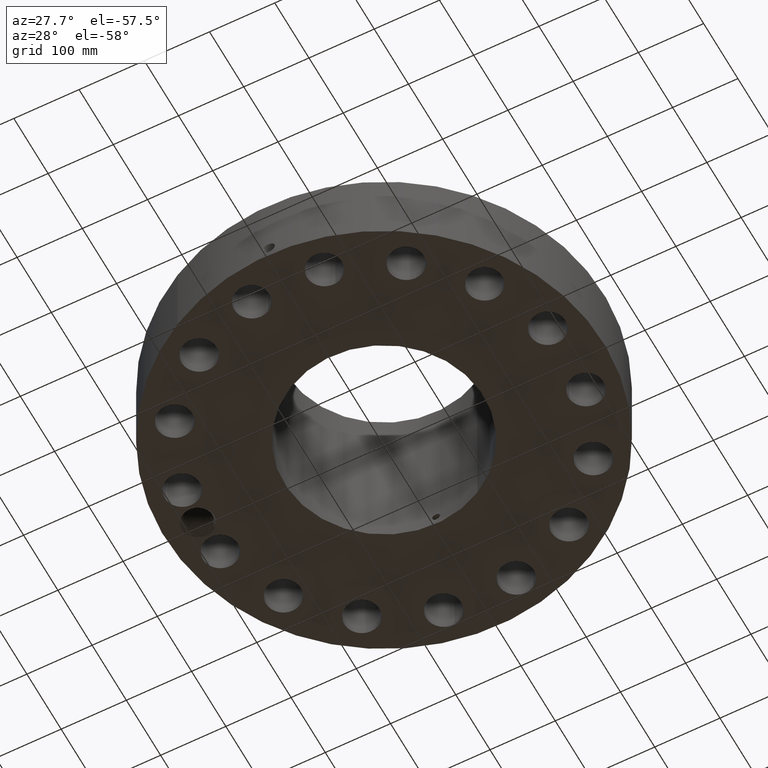
[diagram: clean part render]
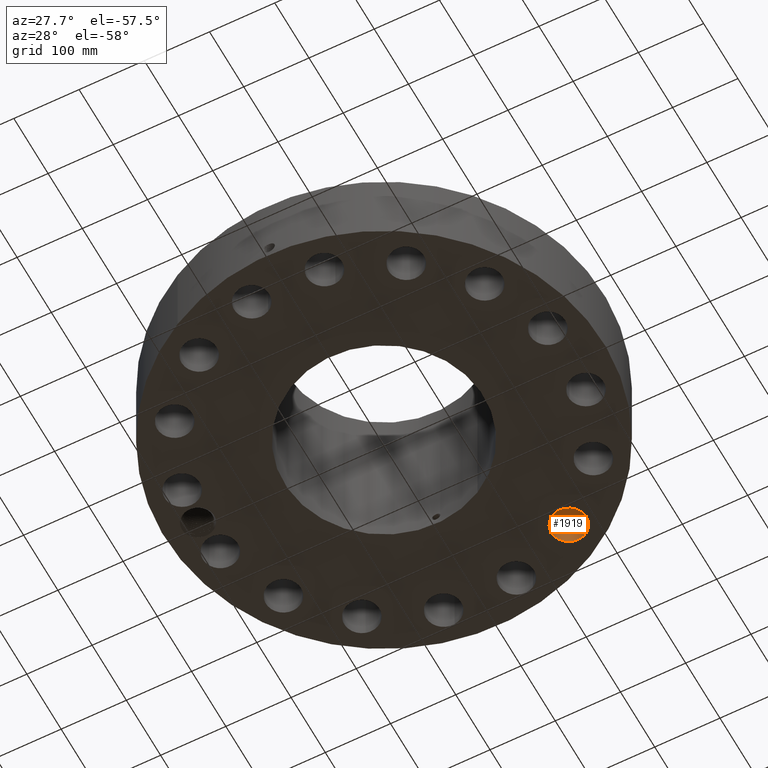
[diagram: same view with one face highlighted and labeled with its STEP entity id]
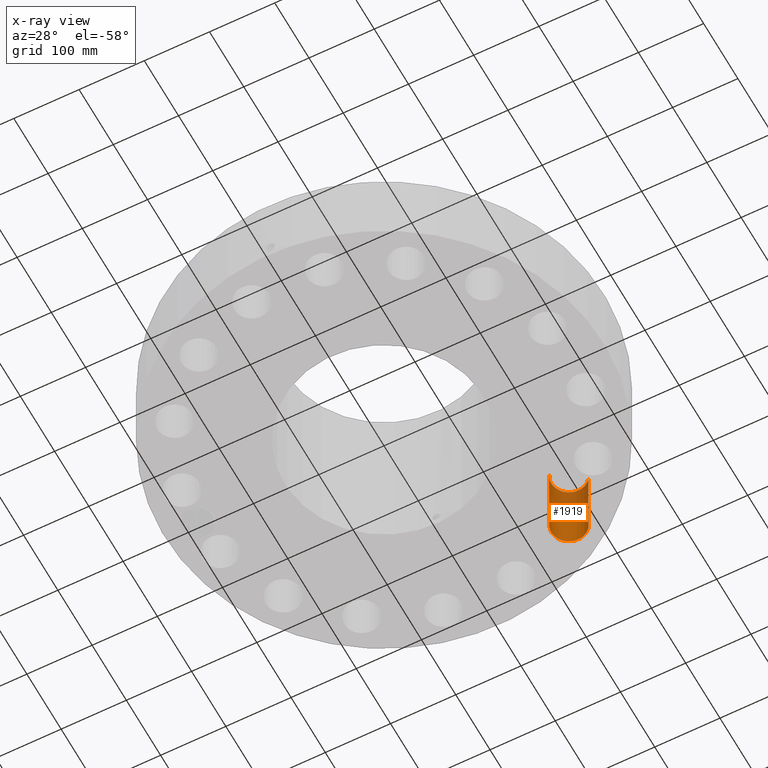
[diagram: x-ray of the same camera — body ghosted, the highlighted face saturated]
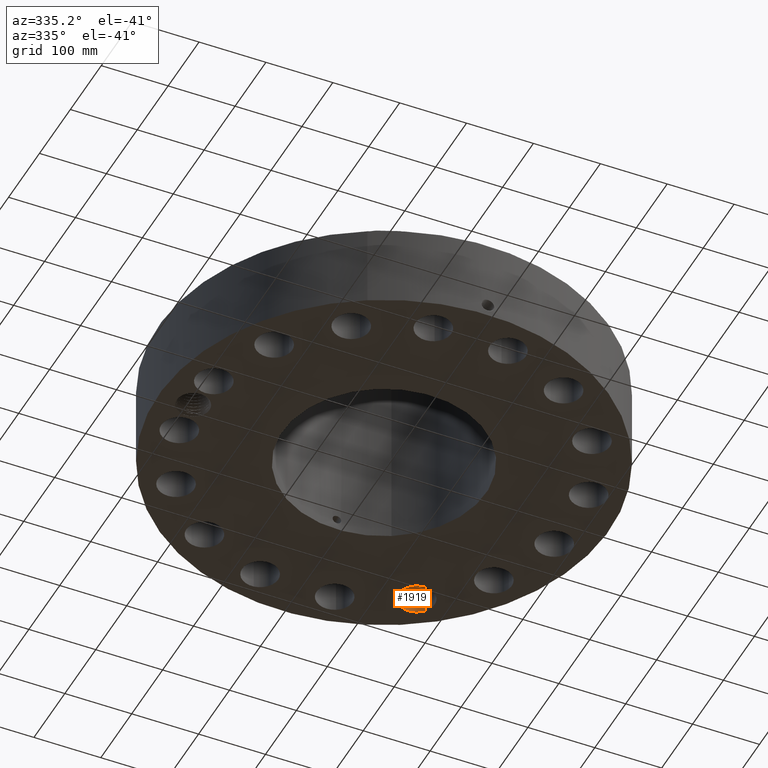
[diagram: same view with one face highlighted and labeled with its STEP entity id]
A machine part, auxiliary view. The second image highlights one B-rep face of the part: STEP entity #1919.
The next image is the same camera in x-ray: the body ghosted, the highlighted face saturated — about 28% of this face is hidden behind the body in this view.
A second angle (auxiliary view) of the same face is appended — the face is thin or edge-on in the first view.
In plain terms, the highlighted cylindrical surface (edge-blend (fillet) strip) has radius 26.924 mm, axis along (0, 0, -1).
Its self-contained STEP definition (entity closure, byte-faithful):
#496=AXIS2_PLACEMENT_3D('Circle Axis2P3D',#494,#495,$) ;
#978=AXIS2_PLACEMENT_3D('Circle Axis2P3D',#976,#977,$) ;
#1901=AXIS2_PLACEMENT_3D('Cylinder Axis2P3D',#1898,#1899,#1900) ;
#494=CARTESIAN_POINT('Axis2P3D Location',(6.2501651215,9.35403313844,0.250000000001)) ;
#498=CARTESIAN_POINT('Vertex',(5.42467130708,8.68908204072,0.250000000001)) ;
#500=CARTESIAN_POINT('Vertex',(7.07565893591,10.0189842362,0.250000000001)) ;
#971=CARTESIAN_POINT('Vertex',(7.07565893591,10.0189842362,5.13000000002)) ;
#973=CARTESIAN_POINT('Vertex',(5.42467130708,8.68908204072,5.13000000002)) ;
#976=CARTESIAN_POINT('Axis2P3D Location',(6.2501651215,9.35403313844,5.13000000002)) ;
#1898=CARTESIAN_POINT('Axis2P3D Location',(6.2501651215,9.35403313844,5.12606299215)) ;
#1903=CARTESIAN_POINT('Line Origine',(5.42467130708,8.68908204072,2.69000000001)) ;
#1908=CARTESIAN_POINT('Line Origine',(7.07565893591,10.0189842362,2.69000000001)) ;
#495=DIRECTION('Axis2P3D Direction',(0.,0.,-0.0393700787402)) ;
#977=DIRECTION('Axis2P3D Direction',(0.,0.,-0.0393700787402)) ;
#1899=DIRECTION('Axis2P3D Direction',(0.,0.,-0.0393700787402)) ;
#1900=DIRECTION('Axis2P3D XDirection',(0.030660147616,0.0246973368639,0.)) ;
#1904=DIRECTION('Vector Direction',(0.,0.,-0.0393700787402)) ;
#1909=DIRECTION('Vector Direction',(0.,0.,-0.0393700787402)) ;
#1905=VECTOR('Line Direction',#1904,0.0393700787402) ;
#1910=VECTOR('Line Direction',#1909,0.0393700787402) ;
#1914=ORIENTED_EDGE('',*,*,#1907,.F.) ;
#1915=ORIENTED_EDGE('',*,*,#502,.T.) ;
#1916=ORIENTED_EDGE('',*,*,#1912,.T.) ;
#1917=ORIENTED_EDGE('',*,*,#980,.F.) ;
#1919=ADVANCED_FACE('PartBody',(#1918),#1902,.F.) ;
#497=CIRCLE('generated circle',#496,1.06) ;
#979=CIRCLE('generated circle',#978,1.06) ;
#1902=CYLINDRICAL_SURFACE('generated cylinder',#1901,1.06) ;
#502=EDGE_CURVE('',#499,#501,#497,.T.) ;
#980=EDGE_CURVE('',#974,#972,#979,.T.) ;
#1907=EDGE_CURVE('',#499,#974,#1906,.F.) ;
#1912=EDGE_CURVE('',#501,#972,#1911,.F.) ;
#1913=EDGE_LOOP('',(#1914,#1915,#1916,#1917)) ;
#1918=FACE_OUTER_BOUND('',#1913,.T.) ;
#1906=LINE('Line',#1903,#1905) ;
#1911=LINE('Line',#1908,#1910) ;
#499=VERTEX_POINT('',#498) ;
#501=VERTEX_POINT('',#500) ;
#972=VERTEX_POINT('',#971) ;
#974=VERTEX_POINT('',#973) ;